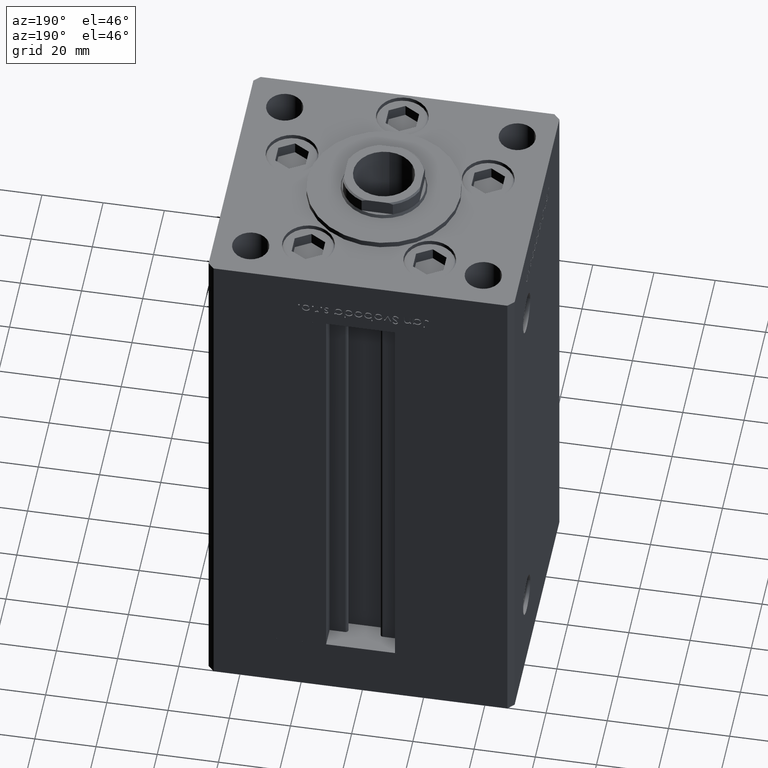
[diagram: clean part render]
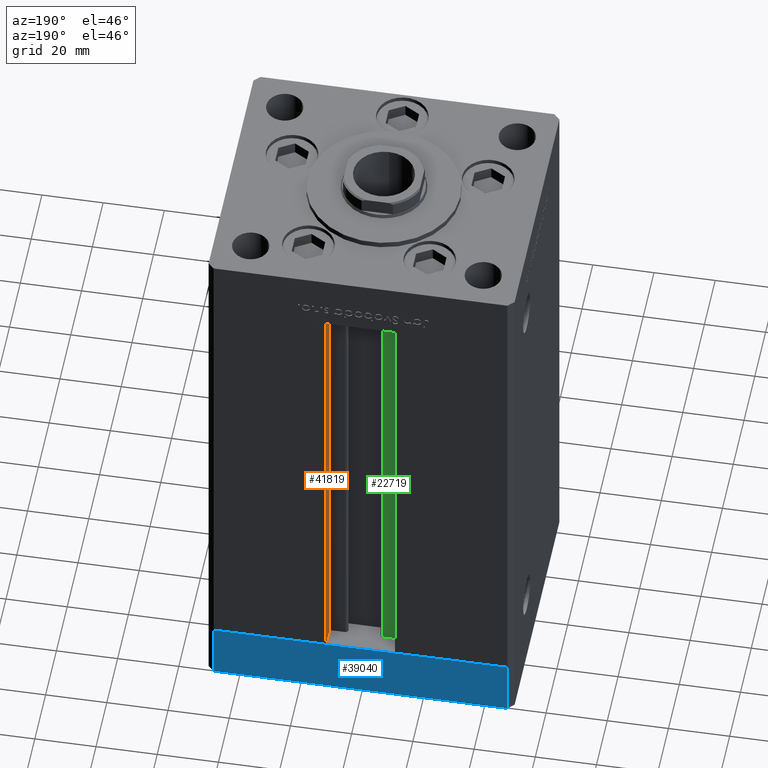
[diagram: same view with three faces highlighted in distinct colors, each labeled with its STEP entity id]
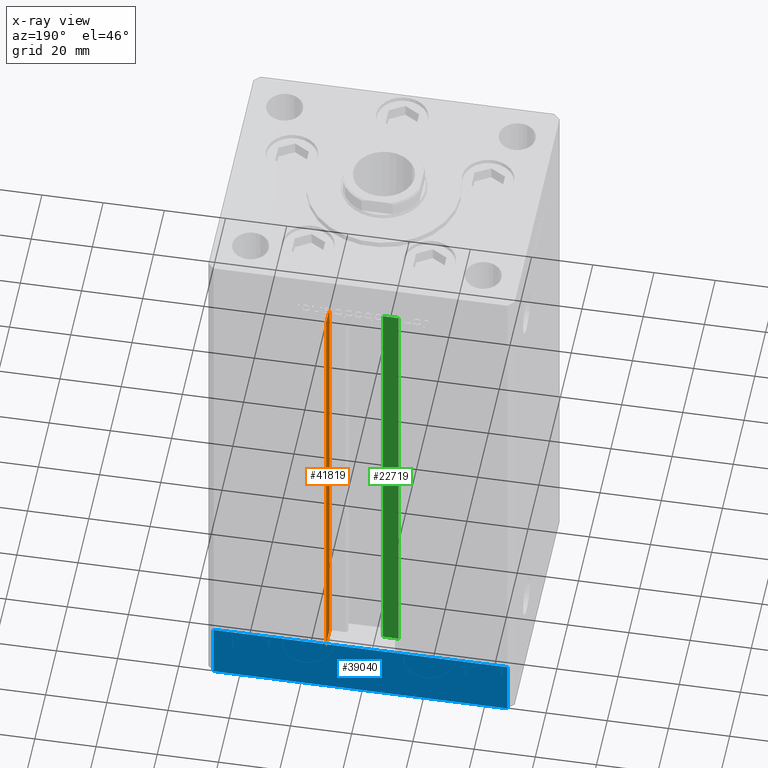
[diagram: x-ray of the same camera — body ghosted, the three highlighted faces saturated]
A machine part, auxiliary view with three faces highlighted in distinct colors.
The next image is the same camera in x-ray (body ghosted, the three faces saturated) — at least one of them is partly hidden behind the body in this view.
Their STEP definitions:

[orange] entity #41819 — the highlighted planar face has unit normal (1, 0, 0).
#22 = CARTESIAN_POINT ( 'NONE',  ( 11.24999999999999112, 43.50000000000000000, 148.5000000000000000 ) ) ;
#838 = LINE ( 'NONE', #33141, #13193 ) ;
#2797 = VERTEX_POINT ( 'NONE', #46733 ) ;
#5093 = CARTESIAN_POINT ( 'NONE',  ( 11.24999999999999822, 0.000000000000000000, 148.5000000000000000 ) ) ;
#5415 = VERTEX_POINT ( 'NONE', #23791 ) ;
#5698 = LINE ( 'NONE', #10133, #50451 ) ;
#10133 = CARTESIAN_POINT ( 'NONE',  ( 11.24999999999999822, 36.99999999999999289, 0.000000000000000000 ) ) ;
#10908 = VERTEX_POINT ( 'NONE', #22 ) ;
#13058 = EDGE_CURVE ( 'NONE', #10908, #2797, #44468, .T. ) ;
#13193 = VECTOR ( 'NONE', #32887, 1000.000000000000000 ) ;
#14051 = VECTOR ( 'NONE', #21846, 1000.000000000000000 ) ;
#17378 = EDGE_CURVE ( 'NONE', #5415, #38479, #5698, .T. ) ;
#19551 = ORIENTED_EDGE ( 'NONE', *, *, #40377, .F. ) ;
#20271 = VECTOR ( 'NONE', #44721, 1000.000000000000000 ) ;
#21026 = CARTESIAN_POINT ( 'NONE',  ( 11.24999999999999822, 36.99999999999999289, 0.000000000000000000 ) ) ;
#21846 = DIRECTION ( 'NONE',  ( -0.000000000000000000, -0.000000000000000000, 1.000000000000000000 ) ) ;
#21939 = EDGE_LOOP ( 'NONE', ( #19551, #30393, #38415, #51543 ) ) ;
#23791 = CARTESIAN_POINT ( 'NONE',  ( 11.24999999999999822, 36.99999999999999289, 0.000000000000000000 ) ) ;
#29166 = FACE_OUTER_BOUND ( 'NONE', #21939, .T. ) ;
#29837 = DIRECTION ( 'NONE',  ( 0.000000000000000000, 1.000000000000000000, 0.000000000000000000 ) ) ;
#30393 = ORIENTED_EDGE ( 'NONE', *, *, #17378, .F. ) ;
#32887 = DIRECTION ( 'NONE',  ( -0.000000000000000000, -0.000000000000000000, 1.000000000000000000 ) ) ;
#33141 = CARTESIAN_POINT ( 'NONE',  ( 11.24999999999999822, 36.99999999999999289, 0.000000000000000000 ) ) ;
#37872 = CARTESIAN_POINT ( 'NONE',  ( 11.24999999999999822, 43.50000000000000000, 0.000000000000000000 ) ) ;
#38135 = LINE ( 'NONE', #37872, #14051 ) ;
#38415 = ORIENTED_EDGE ( 'NONE', *, *, #39621, .T. ) ;
#38479 = VERTEX_POINT ( 'NONE', #48549 ) ;
#39621 = EDGE_CURVE ( 'NONE', #5415, #2797, #838, .T. ) ;
#40377 = EDGE_CURVE ( 'NONE', #38479, #10908, #38135, .T. ) ;
#41237 = DIRECTION ( 'NONE',  ( 0.000000000000000000, 0.000000000000000000, -1.000000000000000000 ) ) ;
#41819 = ADVANCED_FACE ( 'NONE', ( #29166 ), #49622, .F. ) ;
#42010 = DIRECTION ( 'NONE',  ( 1.000000000000000000, -0.000000000000000000, 0.000000000000000000 ) ) ;
#44468 = LINE ( 'NONE', #5093, #20271 ) ;
#44721 = DIRECTION ( 'NONE',  ( -0.000000000000000000, -1.000000000000000000, 0.000000000000000000 ) ) ;
#45947 = AXIS2_PLACEMENT_3D ( 'NONE', #21026, #42010, #41237 ) ;
#46733 = CARTESIAN_POINT ( 'NONE',  ( 11.24999999999999822, 36.99999999999999289, 148.5000000000000000 ) ) ;
#48549 = CARTESIAN_POINT ( 'NONE',  ( 11.24999999999999822, 43.50000000000000000, 0.000000000000000000 ) ) ;
#49622 = PLANE ( 'NONE',  #45947 ) ;
#50451 = VECTOR ( 'NONE', #29837, 1000.000000000000000 ) ;
#51543 = ORIENTED_EDGE ( 'NONE', *, *, #13058, .F. ) ;

[blue] entity #39040 — the highlighted planar face has unit normal (0, 1, 0).
#2820 = DIRECTION ( 'NONE',  ( -1.000000000000000000, -3.614007241618350743E-16, 0.000000000000000000 ) ) ;
#2911 = CARTESIAN_POINT ( 'NONE',  ( 47.99999999999990763, 43.50000000000000000, 0.000000000000000000 ) ) ;
#3154 = CARTESIAN_POINT ( 'NONE',  ( -48.00000000000000711, 43.49999999999996447, 0.000000000000000000 ) ) ;
#3442 = VERTEX_POINT ( 'NONE', #28621 ) ;
#6105 = CARTESIAN_POINT ( 'NONE',  ( -48.00000000000000711, 43.49999999999996447, -19.00000000000000000 ) ) ;
#6758 = LINE ( 'NONE', #22745, #44861 ) ;
#8091 = LINE ( 'NONE', #32509, #35030 ) ;
#9741 = DIRECTION ( 'NONE',  ( -1.000000000000000000, -3.614007241618350743E-16, 0.000000000000000000 ) ) ;
#12016 = DIRECTION ( 'NONE',  ( -1.000000000000000000, -3.614007241618350743E-16, 0.000000000000000000 ) ) ;
#13208 = DIRECTION ( 'NONE',  ( 0.000000000000000000, 0.000000000000000000, 1.000000000000000000 ) ) ;
#13473 = ORIENTED_EDGE ( 'NONE', *, *, #15364, .T. ) ;
#13675 = FACE_OUTER_BOUND ( 'NONE', #23918, .T. ) ;
#14722 = PLANE ( 'NONE',  #46728 ) ;
#15364 = EDGE_CURVE ( 'NONE', #18068, #40865, #49921, .T. ) ;
#18068 = VERTEX_POINT ( 'NONE', #28110 ) ;
#20222 = VECTOR ( 'NONE', #33422, 1000.000000000000000 ) ;
#20604 = ORIENTED_EDGE ( 'NONE', *, *, #39385, .F. ) ;
#21807 = DIRECTION ( 'NONE',  ( -3.614007241618350743E-16, 1.000000000000000000, 0.000000000000000000 ) ) ;
#22745 = CARTESIAN_POINT ( 'NONE',  ( 47.99999999999990763, 43.50000000000000000, -19.00000000000000000 ) ) ;
#23918 = EDGE_LOOP ( 'NONE', ( #20604, #43448, #50066, #13473 ) ) ;
#27174 = EDGE_CURVE ( 'NONE', #3442, #18068, #6758, .T. ) ;
#28110 = CARTESIAN_POINT ( 'NONE',  ( -48.00000000000000711, 43.49999999999996447, -19.00000000000000000 ) ) ;
#28523 = VERTEX_POINT ( 'NONE', #2911 ) ;
#28621 = CARTESIAN_POINT ( 'NONE',  ( 47.99999999999990763, 43.50000000000000000, -19.00000000000000000 ) ) ;
#30086 = EDGE_CURVE ( 'NONE', #3442, #28523, #49432, .T. ) ;
#32509 = CARTESIAN_POINT ( 'NONE',  ( 47.99999999999990763, 43.50000000000000000, 0.000000000000000000 ) ) ;
#33422 = DIRECTION ( 'NONE',  ( 0.000000000000000000, 0.000000000000000000, 1.000000000000000000 ) ) ;
#35030 = VECTOR ( 'NONE', #12016, 1000.000000000000000 ) ;
#39040 = ADVANCED_FACE ( 'NONE', ( #13675 ), #14722, .T. ) ;
#39385 = EDGE_CURVE ( 'NONE', #28523, #40865, #8091, .T. ) ;
#40524 = CARTESIAN_POINT ( 'NONE',  ( 47.99999999999990763, 43.50000000000000000, -19.00000000000000000 ) ) ;
#40865 = VERTEX_POINT ( 'NONE', #3154 ) ;
#43448 = ORIENTED_EDGE ( 'NONE', *, *, #30086, .F. ) ;
#44861 = VECTOR ( 'NONE', #2820, 1000.000000000000000 ) ;
#45699 = CARTESIAN_POINT ( 'NONE',  ( 47.99999999999990763, 43.50000000000000000, -19.00000000000000000 ) ) ;
#45799 = VECTOR ( 'NONE', #13208, 1000.000000000000000 ) ;
#46728 = AXIS2_PLACEMENT_3D ( 'NONE', #45699, #21807, #9741 ) ;
#49432 = LINE ( 'NONE', #40524, #45799 ) ;
#49921 = LINE ( 'NONE', #6105, #20222 ) ;
#50066 = ORIENTED_EDGE ( 'NONE', *, *, #27174, .T. ) ;

[green] entity #22719 — the highlighted planar face has unit normal (0, -1, 0).
#910 = DIRECTION ( 'NONE',  ( -1.000000000000000000, 0.000000000000000000, 0.000000000000000000 ) ) ;
#4163 = CARTESIAN_POINT ( 'NONE',  ( -11.24999999999999822, 36.99999999999999289, 0.000000000000000000 ) ) ;
#6394 = VECTOR ( 'NONE', #38768, 1000.000000000000000 ) ;
#7616 = VERTEX_POINT ( 'NONE', #22361 ) ;
#9624 = ORIENTED_EDGE ( 'NONE', *, *, #33334, .T. ) ;
#9948 = CARTESIAN_POINT ( 'NONE',  ( -11.24999999999999822, 36.99999999999999289, 148.5000000000000000 ) ) ;
#10533 = EDGE_CURVE ( 'NONE', #26306, #34691, #14550, .T. ) ;
#14347 = CARTESIAN_POINT ( 'NONE',  ( -6.183333333333997928, 36.99999999999999289, 0.000000000000000000 ) ) ;
#14550 = LINE ( 'NONE', #38965, #19071 ) ;
#14871 = CARTESIAN_POINT ( 'NONE',  ( -11.24999999999999822, 36.99999999999999289, 0.000000000000000000 ) ) ;
#15130 = ORIENTED_EDGE ( 'NONE', *, *, #10533, .F. ) ;
#15687 = ORIENTED_EDGE ( 'NONE', *, *, #22003, .F. ) ;
#18180 = VERTEX_POINT ( 'NONE', #9948 ) ;
#18232 = EDGE_LOOP ( 'NONE', ( #22484, #15130, #9624, #15687 ) ) ;
#18751 = CARTESIAN_POINT ( 'NONE',  ( -6.183333333333997928, 36.99999999999999289, 0.000000000000000000 ) ) ;
#19071 = VECTOR ( 'NONE', #22158, 1000.000000000000000 ) ;
#20675 = LINE ( 'NONE', #4163, #22258 ) ;
#22003 = EDGE_CURVE ( 'NONE', #7616, #18180, #24798, .T. ) ;
#22158 = DIRECTION ( 'NONE',  ( 1.000000000000000000, -0.000000000000000000, -0.000000000000000000 ) ) ;
#22258 = VECTOR ( 'NONE', #31988, 1000.000000000000000 ) ;
#22361 = CARTESIAN_POINT ( 'NONE',  ( -6.183333333333997928, 36.99999999999999289, 148.5000000000000000 ) ) ;
#22484 = ORIENTED_EDGE ( 'NONE', *, *, #34415, .F. ) ;
#22719 = ADVANCED_FACE ( 'NONE', ( #50630 ), #50894, .F. ) ;
#23335 = DIRECTION ( 'NONE',  ( 0.000000000000000000, -1.000000000000000000, -0.000000000000000000 ) ) ;
#24798 = LINE ( 'NONE', #49210, #48099 ) ;
#26306 = VERTEX_POINT ( 'NONE', #14871 ) ;
#31988 = DIRECTION ( 'NONE',  ( -0.000000000000000000, -0.000000000000000000, 1.000000000000000000 ) ) ;
#33334 = EDGE_CURVE ( 'NONE', #26306, #18180, #20675, .T. ) ;
#34415 = EDGE_CURVE ( 'NONE', #34691, #7616, #42443, .T. ) ;
#34691 = VERTEX_POINT ( 'NONE', #18751 ) ;
#38768 = DIRECTION ( 'NONE',  ( -0.000000000000000000, -0.000000000000000000, 1.000000000000000000 ) ) ;
#38965 = CARTESIAN_POINT ( 'NONE',  ( -6.183333333333997928, 36.99999999999999289, 0.000000000000000000 ) ) ;
#42211 = AXIS2_PLACEMENT_3D ( 'NONE', #43547, #23335, #43803 ) ;
#42443 = LINE ( 'NONE', #14347, #6394 ) ;
#43547 = CARTESIAN_POINT ( 'NONE',  ( -6.183333333333997928, 36.99999999999999289, 0.000000000000000000 ) ) ;
#43803 = DIRECTION ( 'NONE',  ( 0.000000000000000000, 0.000000000000000000, -1.000000000000000000 ) ) ;
#48099 = VECTOR ( 'NONE', #910, 1000.000000000000000 ) ;
#49210 = CARTESIAN_POINT ( 'NONE',  ( 0.000000000000000000, 36.99999999999999289, 148.5000000000000000 ) ) ;
#50630 = FACE_OUTER_BOUND ( 'NONE', #18232, .T. ) ;
#50894 = PLANE ( 'NONE',  #42211 ) ;